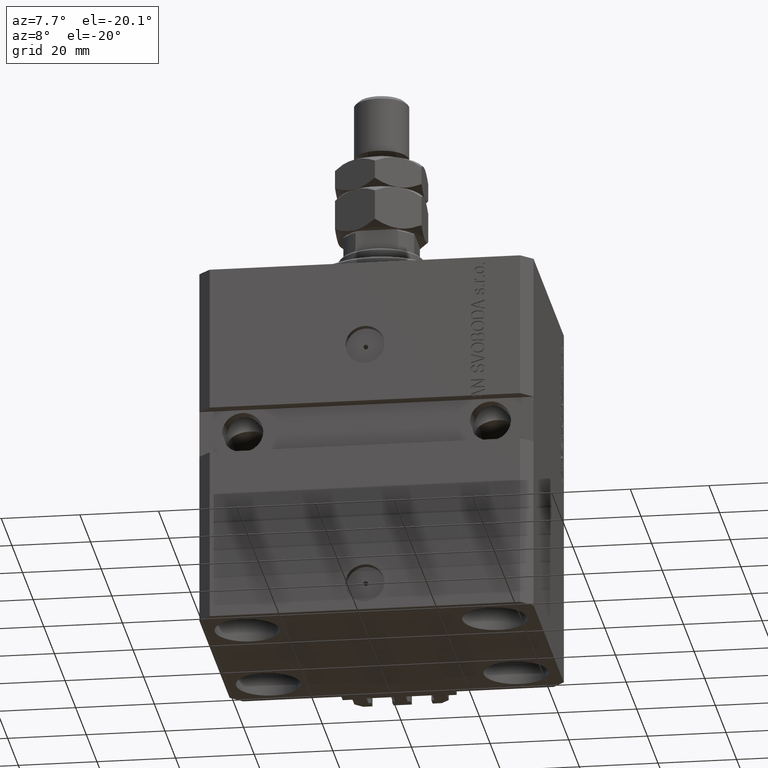
[diagram: clean part render]
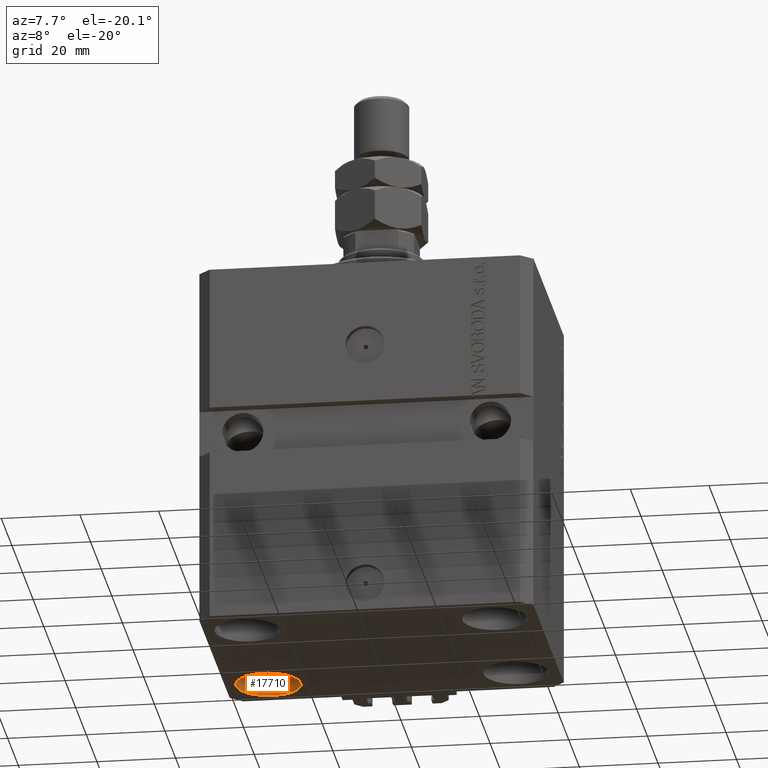
[diagram: same view with one face highlighted and labeled with its STEP entity id]
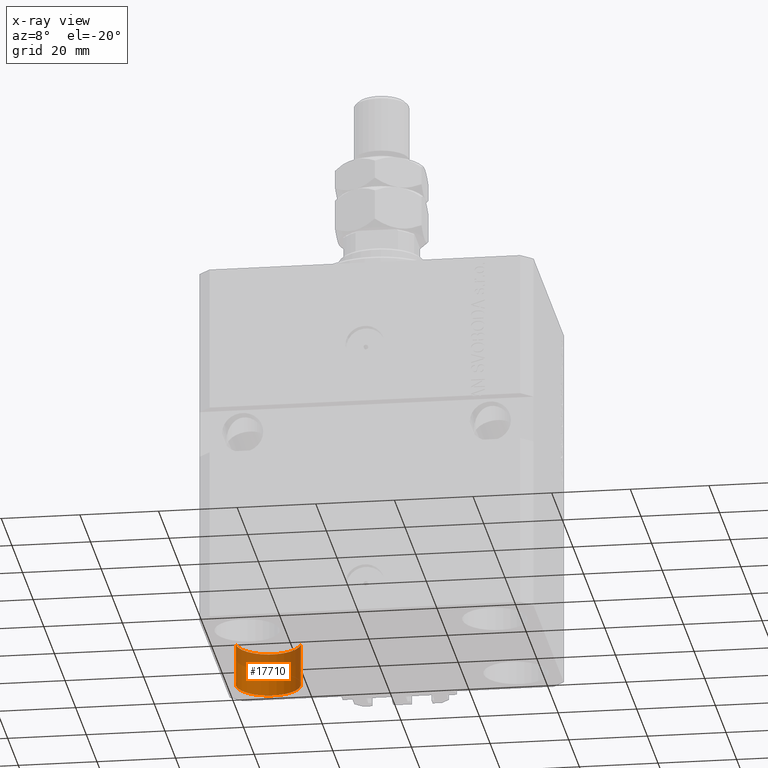
[diagram: x-ray of the same camera — body ghosted, the highlighted face saturated]
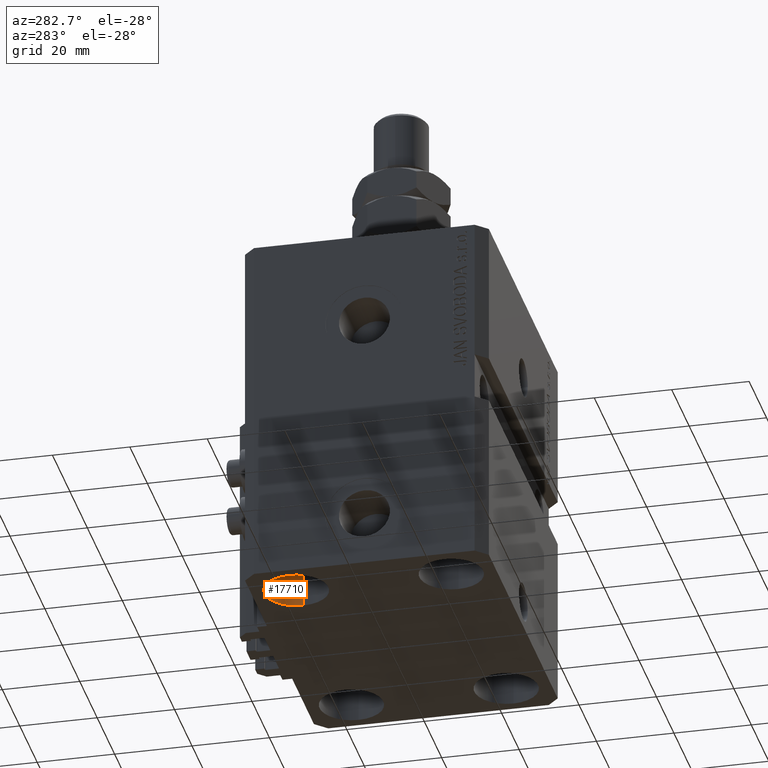
[diagram: same view with one face highlighted and labeled with its STEP entity id]
A machine part, auxiliary view. The second image highlights one B-rep face of the part: STEP entity #17710.
The next image is the same camera in x-ray: the body ghosted, the highlighted face saturated — about 38% of this face is hidden behind the body in this view.
A second angle (auxiliary view) of the same face is appended — the face is thin or edge-on in the first view.
In plain terms, the highlighted cylindrical surface (edge-blend (fillet) strip) has radius 8.25 mm, axis along (-0, -0, -1).
Its self-contained STEP definition (entity closure, byte-faithful):
#435 = CARTESIAN_POINT ( 'NONE',  ( -31.50000000000000000, 20.00000000000000000, -82.00000000000000000 ) ) ;
#2036 = EDGE_CURVE ( 'NONE', #26745, #45262, #10544, .T. ) ;
#4583 = VECTOR ( 'NONE', #35920, 1000.000000000000000 ) ;
#6369 = DIRECTION ( 'NONE',  ( -0.000000000000000000, -0.000000000000000000, -1.000000000000000000 ) ) ;
#6857 = CYLINDRICAL_SURFACE ( 'NONE', #13805, 8.250000000000000000 ) ;
#6991 = VERTEX_POINT ( 'NONE', #8960 ) ;
#7023 = CARTESIAN_POINT ( 'NONE',  ( -23.25000000000000000, 20.00000000000000000, -82.00000000000000000 ) ) ;
#8960 = CARTESIAN_POINT ( 'NONE',  ( -39.75000000000000000, 20.00000000000000000, -82.00000000000000000 ) ) ;
#9092 = CARTESIAN_POINT ( 'NONE',  ( -39.75000000000000000, 20.00000000000000000, -93.00000000000000000 ) ) ;
#9101 = CARTESIAN_POINT ( 'NONE',  ( -39.75000000000000000, 20.00000000000000000, -82.00000000000000000 ) ) ;
#9234 = CARTESIAN_POINT ( 'NONE',  ( -31.50000000000000000, 20.00000000000000000, -93.00000000000000000 ) ) ;
#10544 = CIRCLE ( 'NONE', #40589, 8.250000000000000000 ) ;
#12367 = DIRECTION ( 'NONE',  ( -0.000000000000000000, -0.000000000000000000, -1.000000000000000000 ) ) ;
#12894 = EDGE_LOOP ( 'NONE', ( #29092, #23504, #42034, #29021 ) ) ;
#12976 = DIRECTION ( 'NONE',  ( 1.000000000000000000, 0.000000000000000000, 0.000000000000000000 ) ) ;
#13346 = FACE_OUTER_BOUND ( 'NONE', #12894, .T. ) ;
#13805 = AXIS2_PLACEMENT_3D ( 'NONE', #25235, #6369, #14067 ) ;
#14067 = DIRECTION ( 'NONE',  ( -1.000000000000000000, 0.000000000000000000, 0.000000000000000000 ) ) ;
#15032 = AXIS2_PLACEMENT_3D ( 'NONE', #435, #19798, #31209 ) ;
#15206 = CARTESIAN_POINT ( 'NONE',  ( -23.25000000000000000, 20.00000000000000000, -93.00000000000000000 ) ) ;
#16209 = VERTEX_POINT ( 'NONE', #7023 ) ;
#17710 = ADVANCED_FACE ( 'NONE', ( #13346 ), #6857, .F. ) ;
#19798 = DIRECTION ( 'NONE',  ( -0.000000000000000000, -0.000000000000000000, 1.000000000000000000 ) ) ;
#21007 = LINE ( 'NONE', #9101, #4583 ) ;
#23504 = ORIENTED_EDGE ( 'NONE', *, *, #37393, .T. ) ;
#25235 = CARTESIAN_POINT ( 'NONE',  ( -31.50000000000000000, 20.00000000000000000, -82.00000000000000000 ) ) ;
#26745 = VERTEX_POINT ( 'NONE', #15206 ) ;
#29021 = ORIENTED_EDGE ( 'NONE', *, *, #2036, .F. ) ;
#29092 = ORIENTED_EDGE ( 'NONE', *, *, #48008, .F. ) ;
#30850 = CIRCLE ( 'NONE', #15032, 8.250000000000000000 ) ;
#31209 = DIRECTION ( 'NONE',  ( 1.000000000000000000, 0.000000000000000000, 0.000000000000000000 ) ) ;
#31223 = LINE ( 'NONE', #35463, #40441 ) ;
#35463 = CARTESIAN_POINT ( 'NONE',  ( -23.25000000000000000, 20.00000000000000000, -82.00000000000000000 ) ) ;
#35920 = DIRECTION ( 'NONE',  ( -0.000000000000000000, -0.000000000000000000, -1.000000000000000000 ) ) ;
#37393 = EDGE_CURVE ( 'NONE', #16209, #6991, #30850, .T. ) ;
#40441 = VECTOR ( 'NONE', #12367, 1000.000000000000000 ) ;
#40589 = AXIS2_PLACEMENT_3D ( 'NONE', #9234, #42791, #12976 ) ;
#42034 = ORIENTED_EDGE ( 'NONE', *, *, #43640, .T. ) ;
#42791 = DIRECTION ( 'NONE',  ( -0.000000000000000000, -0.000000000000000000, 1.000000000000000000 ) ) ;
#43640 = EDGE_CURVE ( 'NONE', #6991, #45262, #21007, .T. ) ;
#45262 = VERTEX_POINT ( 'NONE', #9092 ) ;
#48008 = EDGE_CURVE ( 'NONE', #16209, #26745, #31223, .T. ) ;